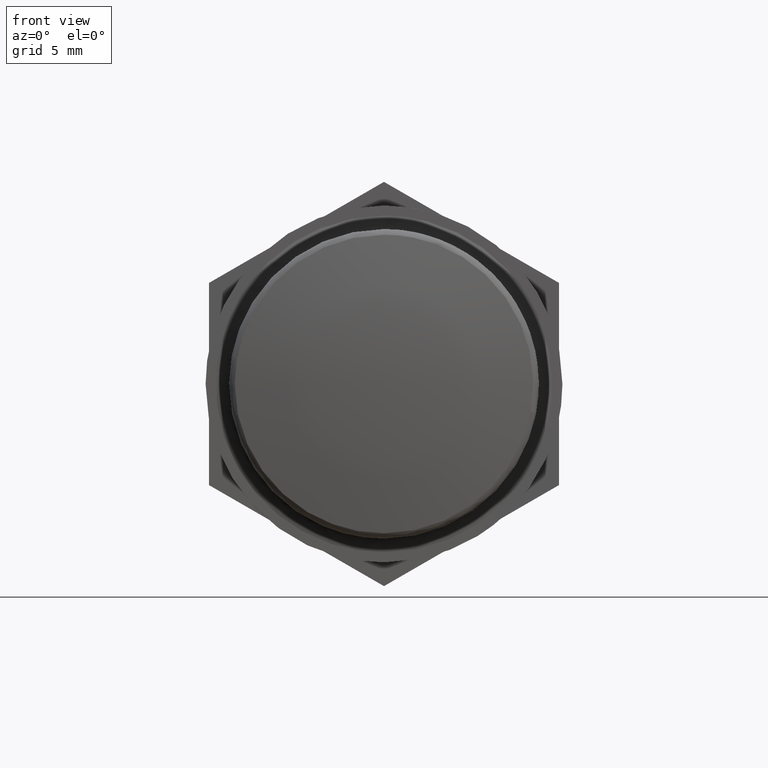
[diagram: clean part render]
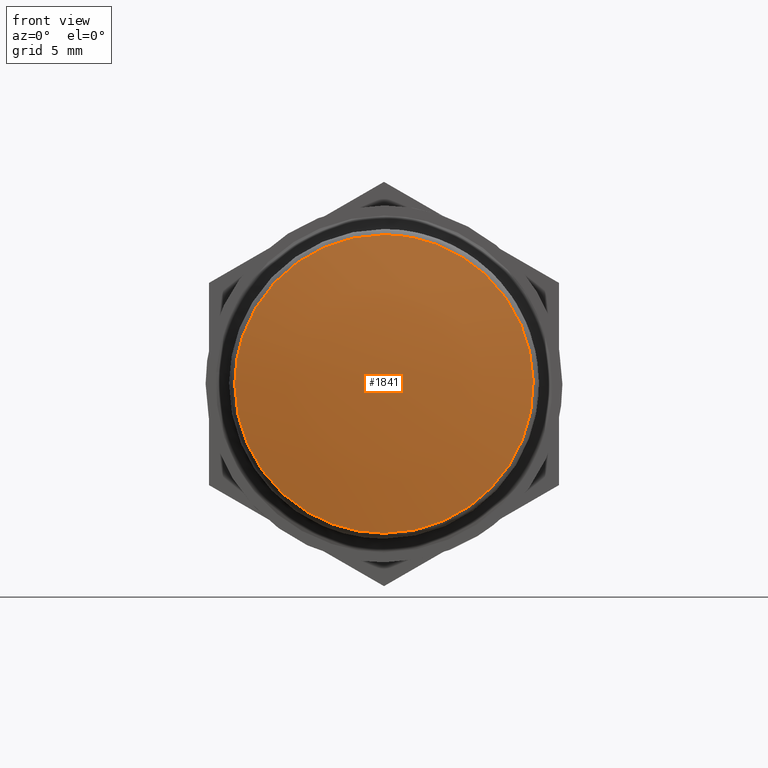
[diagram: same view with one face highlighted and labeled with its STEP entity id]
A machine part, front view. The second image highlights one B-rep face of the part: STEP entity #1841.
In plain terms, the highlighted face is a freeform B-spline surface patch.
Its self-contained STEP definition (entity closure, byte-faithful):
#1469=CARTESIAN_POINT('',(-19.571680915051001,-10.886862286652740,-2.076780051482100));
#1470=VERTEX_POINT('',#1469);
#1481=CARTESIAN_POINT('',(-19.571680590059849,0.0,-11.083175738373219));
#1482=VERTEX_POINT('',#1481);
#1483=CARTESIAN_POINT('',(-19.571680590059849,0.0,-11.083175738373219));
#1484=CARTESIAN_POINT('',(-19.571680590057461,-0.678244873934153,-11.083242433546490));
#1485=CARTESIAN_POINT('',(-19.571680593639311,-1.755425258921120,-10.983979700476020));
#1486=CARTESIAN_POINT('',(-19.571680605856152,-3.153387282239109,-10.645416384185591));
#1487=CARTESIAN_POINT('',(-19.571680621485250,-4.377178783221726,-10.212295622508069));
#1488=CARTESIAN_POINT('',(-19.571680646237681,-5.756070424898811,-9.526315158415375));
#1489=CARTESIAN_POINT('',(-19.571680683652449,-7.205443050599118,-8.489504302662246));
#1490=CARTESIAN_POINT('',(-19.571680726672341,-8.390670347339006,-7.297230171231225));
#1491=CARTESIAN_POINT('',(-19.571680771143470,-9.312127216649390,-6.064903197750754));
#1492=CARTESIAN_POINT('',(-19.571680814460290,-9.991823165540549,-4.864391506282605));
#1493=CARTESIAN_POINT('',(-19.571680863184120,-10.544109842619999,-3.514181024500359));
#1494=CARTESIAN_POINT('',(-19.571680896666830,-10.789699974333120,-2.586253974906323));
#1495=CARTESIAN_POINT('',(-19.571680915051001,-10.886862286652740,-2.076780051482100));
#1496=B_SPLINE_CURVE_WITH_KNOTS('',3,(#1483,#1484,#1485,#1486,#1487,#1488,#1489,#1490,#1491,#1492,#1493,#1494,#1495),.UNSPECIFIED.,.F.,.U.,(4,1,1,1,1,1,1,1,1,1,4),(0.000000012409767,2.034721206004130,3.231625849659030,4.308835062958584,5.924654343790536,7.839676837257315,9.635029730016779,10.951621199757801,12.447744801324260,13.764334988149020,15.320300968485819),.UNSPECIFIED.);
#1497=EDGE_CURVE('',#1482,#1470,#1496,.T.);
#1499=CARTESIAN_POINT('',(-19.571680590059849,11.083175738373210,-0.000000497192601));
#1500=VERTEX_POINT('',#1499);
#1501=CARTESIAN_POINT('',(-19.571680590059849,11.083175738373210,-0.000000497192601));
#1502=CARTESIAN_POINT('',(-19.571680590059898,11.083328899878699,-0.816075267626886));
#1503=CARTESIAN_POINT('',(-19.571680590059771,10.924706535391140,-2.244129783369066));
#1504=CARTESIAN_POINT('',(-19.571680590059920,10.407652551369260,-3.893717210642306));
#1505=CARTESIAN_POINT('',(-19.571680590059788,9.882110201865402,-5.050375786656190));
#1506=CARTESIAN_POINT('',(-19.571680590059898,9.378707781063973,-5.939003587524875));
#1507=CARTESIAN_POINT('',(-19.571680590059781,8.607709608125159,-7.033830615677014));
#1508=CARTESIAN_POINT('',(-19.571680590060009,7.697329522813207,-8.019843497117027));
#1509=CARTESIAN_POINT('',(-19.571680590059529,6.475457628532978,-9.035251921890660));
#1510=CARTESIAN_POINT('',(-19.571680590060151,5.204653423570450,-9.834525149672235));
#1511=CARTESIAN_POINT('',(-19.571680590059689,3.807063296281649,-10.438669892499780));
#1512=CARTESIAN_POINT('',(-19.571680590060041,2.478375487768830,-10.828406789024440));
#1513=CARTESIAN_POINT('',(-19.571680590059501,1.246763125224935,-11.038214316128631));
#1514=CARTESIAN_POINT('',(-19.571680590060328,0.385361332602345,-11.083180280492829));
#1515=CARTESIAN_POINT('',(-19.571680590059849,0.0,-11.083175738373219));
#1516=B_SPLINE_CURVE_WITH_KNOTS('',3,(#1501,#1502,#1503,#1504,#1505,#1506,#1507,#1508,#1509,#1510,#1511,#1512,#1513,#1514,#1515),.UNSPECIFIED.,.F.,.U.,(4,1,1,1,1,1,1,1,1,1,1,1,4),(0.000000012247337,2.448195852331239,4.284354027534590,5.168430106301301,6.256522908331736,7.344608636088397,9.180755030419936,10.268840459445460,12.104997024629570,13.669131703552249,14.825230488519480,16.253352602108240,17.409438769146359),.UNSPECIFIED.);
#1517=EDGE_CURVE('',#1500,#1482,#1516,.T.);
#1519=CARTESIAN_POINT('',(-19.571680590059849,0.0,11.083175738373219));
#1520=VERTEX_POINT('',#1519);
#1521=CARTESIAN_POINT('',(-19.571680590059849,0.0,11.083175738373219));
#1522=CARTESIAN_POINT('',(-19.571680590059831,0.634721982918441,11.083232246633630));
#1523=CARTESIAN_POINT('',(-19.571680590059881,1.813464048814928,10.981634756797170));
#1524=CARTESIAN_POINT('',(-19.571680590059920,3.378931741626748,10.589504234208309));
#1525=CARTESIAN_POINT('',(-19.571680590059842,4.687711241307496,10.070749312556050));
#1526=CARTESIAN_POINT('',(-19.571680590059870,5.807313122093254,9.467880927103018));
#1527=CARTESIAN_POINT('',(-19.571680590059881,6.739388422794804,8.819954438792690));
#1528=CARTESIAN_POINT('',(-19.571680590060090,7.622407567257340,8.072318362442761));
#1529=CARTESIAN_POINT('',(-19.571680590059380,8.536562401170018,7.123917867508620));
#1530=CARTESIAN_POINT('',(-19.571680590061160,9.419300050948797,5.910509964147827));
#1531=CARTESIAN_POINT('',(-19.571680590058019,10.015478510849750,4.786790887233734));
#1532=CARTESIAN_POINT('',(-19.571680590061071,10.466789309314700,3.697239880296412));
#1533=CARTESIAN_POINT('',(-19.571680590059120,10.759855979673080,2.741689169082831));
#1534=CARTESIAN_POINT('',(-19.571680590060431,11.016953728559921,1.428103247325575));
#1535=CARTESIAN_POINT('',(-19.571680590058829,11.083213166931641,0.566714337361374));
#1536=CARTESIAN_POINT('',(-19.571680590059849,11.083175738373210,-0.000000497192601));
#1537=B_SPLINE_CURVE_WITH_KNOTS('',3,(#1521,#1522,#1523,#1524,#1525,#1526,#1527,#1528,#1529,#1530,#1531,#1532,#1533,#1534,#1535,#1536),.UNSPECIFIED.,.F.,.U.,(4,1,1,1,1,1,1,1,1,1,1,1,1,4),(0.000000012217694,1.904156888097377,3.536289879988866,4.828400802591929,6.120506624394073,7.344608872347408,8.228681538220135,9.588791145331227,11.288928035425950,12.717050960586310,13.397108040606170,14.825230965748171,15.709300070884730,17.409439329599088),.UNSPECIFIED.);
#1538=EDGE_CURVE('',#1520,#1500,#1537,.T.);
#1540=CARTESIAN_POINT('',(-19.571680915788551,-3.945070268160781,10.357277939359390));
#1541=VERTEX_POINT('',#1540);
#1542=CARTESIAN_POINT('',(-19.571680915788551,-3.945070268160781,10.357277939359390));
#1543=CARTESIAN_POINT('',(-19.571680805025132,-3.297237884194669,10.604118197466480));
#1544=CARTESIAN_POINT('',(-19.571680643398270,-1.995731518987756,10.964309034876210));
#1545=CARTESIAN_POINT('',(-19.571680590031491,-0.651250598728206,11.083238995022560));
#1546=CARTESIAN_POINT('',(-19.571680590059849,0.0,11.083175738373219));
#1547=B_SPLINE_CURVE_WITH_KNOTS('',3,(#1542,#1543,#1544,#1545,#1546),.UNSPECIFIED.,.F.,.U.,(4,1,4),(8.316041E-010,2.079784374805600,4.033525407477268),.UNSPECIFIED.);
#1548=EDGE_CURVE('',#1541,#1520,#1547,.T.);
#1582=CARTESIAN_POINT('',(-19.571680915051001,-10.886862286652740,-2.076780051482100));
#1583=CARTESIAN_POINT('',(-19.571680883960070,-10.977434937517041,-1.602063492388992));
#1584=CARTESIAN_POINT('',(-19.571680826645188,-11.096342259485780,-0.640756338208234));
#1585=CARTESIAN_POINT('',(-19.571680763527048,-11.086209746673850,0.670894301214369));
#1586=CARTESIAN_POINT('',(-19.571680716776669,-10.939644666836690,1.891793631019124));
#1587=CARTESIAN_POINT('',(-19.571680684596860,-10.692858305575861,2.993832771369402));
#1588=CARTESIAN_POINT('',(-19.571680659350069,-10.246546827654081,4.311606164937170));
#1589=CARTESIAN_POINT('',(-19.571680653065009,-9.672348451557701,5.470176050801064));
#1590=CARTESIAN_POINT('',(-19.571680662933900,-8.940291568732302,6.580745607421249));
#1591=CARTESIAN_POINT('',(-19.571680685441962,-8.115055055842770,7.599475477563642));
#1592=CARTESIAN_POINT('',(-19.571680730297750,-7.039799177347397,8.608538866375021));
#1593=CARTESIAN_POINT('',(-19.571680805952418,-5.619485505841065,9.605297173072271));
#1594=CARTESIAN_POINT('',(-19.571680871684041,-4.584911692924724,10.113649927745721));
#1595=CARTESIAN_POINT('',(-19.571680915788551,-3.945070268160781,10.357277939359390));
#1596=B_SPLINE_CURVE_WITH_KNOTS('',3,(#1582,#1583,#1584,#1585,#1586,#1587,#1588,#1589,#1590,#1591,#1592,#1593,#1594,#1595),.UNSPECIFIED.,.F.,.U.,(4,1,1,1,1,1,1,1,1,1,1,4),(0.000000012450796,1.449839121374014,2.899695122328179,3.926670742941088,5.134878189390969,6.282675239082060,8.094970247870199,9.001128122480615,10.269753104068890,12.021652999183139,13.411092826751799,15.465040362372310),.UNSPECIFIED.);
#1597=EDGE_CURVE('',#1470,#1541,#1596,.T.);
#1810=CARTESIAN_POINT('',(-18.275877736237792,-12.070971202285241,12.071007664472265));
#1811=CARTESIAN_POINT('',(-19.378576501712747,-6.086279556019363,12.172595881087370));
#1812=CARTESIAN_POINT('',(-19.378576501712747,6.086296583442267,12.172595881087370));
#1813=CARTESIAN_POINT('',(-18.275871617739867,12.071004409243086,12.071007100794034));
#1814=CARTESIAN_POINT('',(-19.378583219523101,-12.172559730927910,6.086298249989193));
#1815=CARTESIAN_POINT('',(-20.499999999999989,-6.137936034065024,6.137954574625517));
#1816=CARTESIAN_POINT('',(-20.499999999999989,6.137953206005887,6.137954574625517));
#1817=CARTESIAN_POINT('',(-19.378576997606036,12.172593212569604,6.086297963386233));
#1818=CARTESIAN_POINT('',(-19.378583219523101,-12.172559730927910,-6.086297767507464));
#1819=CARTESIAN_POINT('',(-20.499999999999989,-6.137936034065024,-6.137954088048815));
#1820=CARTESIAN_POINT('',(-20.499999999999989,6.137953206005887,-6.137954088048815));
#1821=CARTESIAN_POINT('',(-19.378576997606036,12.172593212569604,-6.086297480904528));
#1822=CARTESIAN_POINT('',(-18.275877909609189,-12.070971218257361,-12.071006723534266));
#1823=CARTESIAN_POINT('',(-19.378576678014571,-6.086279564140408,-12.172594932366094));
#1824=CARTESIAN_POINT('',(-19.378576678014571,6.086296591563333,-12.172594932366094));
#1825=CARTESIAN_POINT('',(-18.275871791111250,12.071004425215248,-12.071006159856077));
#1833=(BOUNDED_SURFACE()B_SPLINE_SURFACE(2,2,((#1810,#1814,#1818,#1822),(#1811,#1815,#1819,#1823),(#1812,#1816,#1820,#1824),(#1813,#1817,#1821,#1825)),.UNSPECIFIED.,.F.,.F.,.U.)B_SPLINE_SURFACE_WITH_KNOTS((3,1,3),(3,1,3),(19.091607260227200,31.025186058031260,42.958798242092129),(19.091571213054660,31.025186058031260,42.958799956989289),.UNSPECIFIED.)GEOMETRIC_REPRESENTATION_ITEM()RATIONAL_B_SPLINE_SURFACE(((1.016974679370128,1.008487314047815,1.008487314047815,1.016974678024483),(1.008487365322313,1.0,1.0,1.008487363976668),(1.008487365322313,1.0,1.0,1.008487363976668),(1.016974726859661,1.008487361537348,1.008487361537348,1.016974725514016)))REPRESENTATION_ITEM('')SURFACE());
#1834=ORIENTED_EDGE('',*,*,#1538,.T.);
#1835=ORIENTED_EDGE('',*,*,#1517,.T.);
#1836=ORIENTED_EDGE('',*,*,#1497,.T.);
#1837=ORIENTED_EDGE('',*,*,#1597,.T.);
#1838=ORIENTED_EDGE('',*,*,#1548,.T.);
#1839=EDGE_LOOP('',(#1834,#1835,#1836,#1837,#1838));
#1840=FACE_OUTER_BOUND('',#1839,.T.);
#1841=ADVANCED_FACE('',(#1840),#1833,.T.);